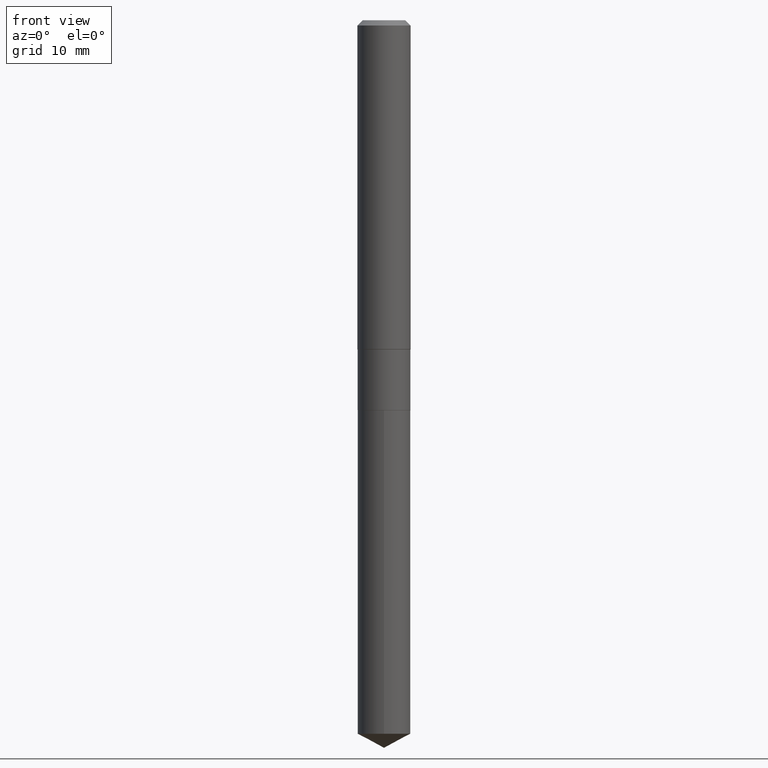
[diagram: clean part render]
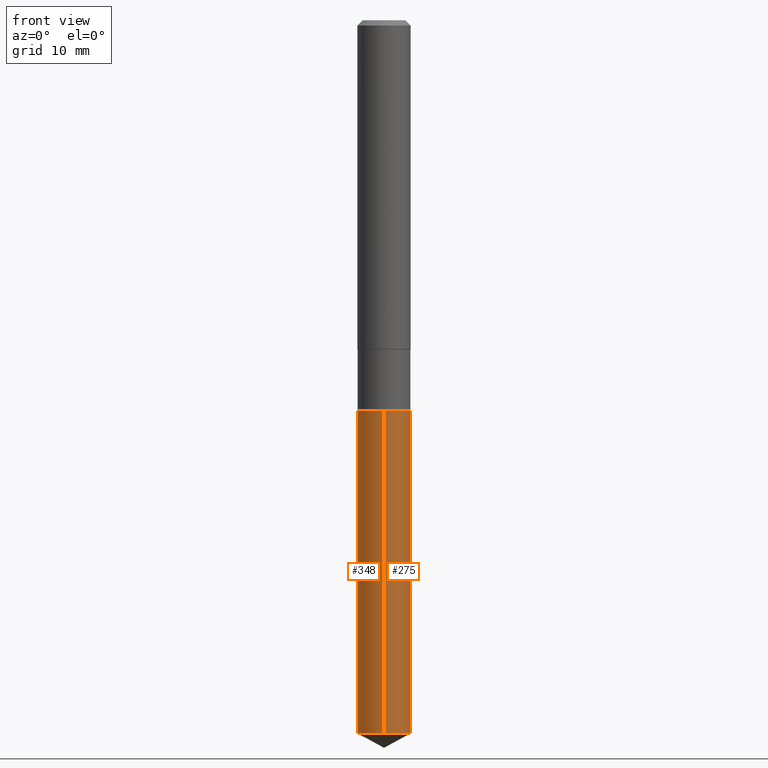
[diagram: same view with one multi-face feature highlighted, each face labeled with its STEP entity id]
A machine part, front view. The highlighted faces form ONE feature: a constant-radius fillet chain: 2 tangent blend faces with common blend radius 2.9769 mm. The faces share edges in the B-rep.
Their STEP definitions:
[1] entity #348 (Cylinder):
#18 = VERTEX_POINT ( 'NONE', #82 ) ;
#59 = AXIS2_PLACEMENT_3D ( 'NONE', #134, #360, #435 ) ;
#63 = DIRECTION ( 'NONE',  ( -6.982962677686265922E-15, -1.000000000000000000, 2.330928322239132474E-15 ) ) ;
#71 = EDGE_CURVE ( 'NONE', #95, #178, #196, .T. ) ;
#82 = CARTESIAN_POINT ( 'NONE',  ( 8.327560863109148150E-16, 0.1171999999999889519, -3.165683654609275699 ) ) ;
#95 = VERTEX_POINT ( 'NONE', #235 ) ;
#96 = CYLINDRICAL_SURFACE ( 'NONE', #198, 0.1171999999999999986 ) ;
#101 = CARTESIAN_POINT ( 'NONE',  ( 4.231639222222760531E-29, -6.041659308734178576E-15, -1.730399999999999938 ) ) ;
#103 = CIRCLE ( 'NONE', #59, 0.1171999999999999986 ) ;
#112 = ORIENTED_EDGE ( 'NONE', *, *, #298, .F. ) ;
#134 = CARTESIAN_POINT ( 'NONE',  ( 4.231639222222760531E-29, -6.041659308734178576E-15, -1.730399999999999938 ) ) ;
#143 = CARTESIAN_POINT ( 'NONE',  ( -8.184032258247879554E-16, -0.1172000000000060493, -1.730399999999999716 ) ) ;
#178 = VERTEX_POINT ( 'NONE', #143 ) ;
#196 = LINE ( 'NONE', #423, #338 ) ;
#198 = AXIS2_PLACEMENT_3D ( 'NONE', #101, #407, #63 ) ;
#204 = CIRCLE ( 'NONE', #304, 0.1171999999999999986 ) ;
#205 = ORIENTED_EDGE ( 'NONE', *, *, #490, .T. ) ;
#235 = CARTESIAN_POINT ( 'NONE',  ( -8.184032258247529497E-16, -0.1172000000000110592, -3.165683654609274367 ) ) ;
#286 = LINE ( 'NONE', #361, #457 ) ;
#291 = EDGE_LOOP ( 'NONE', ( #112, #205, #316, #467 ) ) ;
#298 = EDGE_CURVE ( 'NONE', #18, #448, #286, .T. ) ;
#304 = AXIS2_PLACEMENT_3D ( 'NONE', #442, #404, #363 ) ;
#316 = ORIENTED_EDGE ( 'NONE', *, *, #71, .T. ) ;
#338 = VECTOR ( 'NONE', #343, 39.37007874015748143 ) ;
#341 = EDGE_CURVE ( 'NONE', #448, #178, #103, .T. ) ;
#343 = DIRECTION ( 'NONE',  ( -2.445547445616440357E-29, 3.491368722701639163E-15, 1.000000000000000000 ) ) ;
#348 = ADVANCED_FACE ( 'NONE', ( #367 ), #96, .T. ) ;
#360 = DIRECTION ( 'NONE',  ( -2.445547445616440637E-29, 3.491368722701639557E-15, 1.000000000000000000 ) ) ;
#361 = CARTESIAN_POINT ( 'NONE',  ( 8.327560863108796121E-16, 0.1171999999999939479, -1.730400000000000160 ) ) ;
#363 = DIRECTION ( 'NONE',  ( -6.982962677686265922E-15, -1.000000000000000000, 4.661856644478264948E-15 ) ) ;
#367 = FACE_OUTER_BOUND ( 'NONE', #291, .T. ) ;
#404 = DIRECTION ( 'NONE',  ( -2.445547445616440637E-29, 3.491368722701639557E-15, 1.000000000000000000 ) ) ;
#407 = DIRECTION ( 'NONE',  ( -2.445547445616440637E-29, 3.491368722701639557E-15, 1.000000000000000000 ) ) ;
#423 = CARTESIAN_POINT ( 'NONE',  ( -8.184032258247879554E-16, -0.1172000000000060493, -1.730399999999999716 ) ) ;
#435 = DIRECTION ( 'NONE',  ( -6.982962677686265922E-15, -1.000000000000000000, 2.330928322239132474E-15 ) ) ;
#436 = DIRECTION ( 'NONE',  ( -2.445547445616440357E-29, 3.491368722701639163E-15, 1.000000000000000000 ) ) ;
#438 = CARTESIAN_POINT ( 'NONE',  ( 8.327560863109149136E-16, 0.1171999999999939340, -1.730400000000000160 ) ) ;
#442 = CARTESIAN_POINT ( 'NONE',  ( 7.741693497487502806E-29, -1.105276376864190522E-14, -3.165683654609275255 ) ) ;
#448 = VERTEX_POINT ( 'NONE', #438 ) ;
#457 = VECTOR ( 'NONE', #436, 39.37007874015748143 ) ;
#467 = ORIENTED_EDGE ( 'NONE', *, *, #341, .F. ) ;
#490 = EDGE_CURVE ( 'NONE', #18, #95, #204, .T. ) ;
[2] entity #275 (Cylinder):
#10 = AXIS2_PLACEMENT_3D ( 'NONE', #250, #20, #180 ) ;
#18 = VERTEX_POINT ( 'NONE', #82 ) ;
#20 = DIRECTION ( 'NONE',  ( -2.445547445616440637E-29, 3.491368722701639557E-15, 1.000000000000000000 ) ) ;
#58 = AXIS2_PLACEMENT_3D ( 'NONE', #281, #427, #315 ) ;
#62 = CARTESIAN_POINT ( 'NONE',  ( 7.741693497487502806E-29, -1.105276376864190522E-14, -3.165683654609275255 ) ) ;
#67 = CIRCLE ( 'NONE', #10, 0.1171999999999999986 ) ;
#71 = EDGE_CURVE ( 'NONE', #95, #178, #196, .T. ) ;
#82 = CARTESIAN_POINT ( 'NONE',  ( 8.327560863109148150E-16, 0.1171999999999889519, -3.165683654609275699 ) ) ;
#90 = DIRECTION ( 'NONE',  ( -6.982962677686265922E-15, -1.000000000000000000, 4.661856644478264948E-15 ) ) ;
#95 = VERTEX_POINT ( 'NONE', #235 ) ;
#104 = ORIENTED_EDGE ( 'NONE', *, *, #216, .T. ) ;
#116 = ORIENTED_EDGE ( 'NONE', *, *, #298, .T. ) ;
#143 = CARTESIAN_POINT ( 'NONE',  ( -8.184032258247879554E-16, -0.1172000000000060493, -1.730399999999999716 ) ) ;
#178 = VERTEX_POINT ( 'NONE', #143 ) ;
#180 = DIRECTION ( 'NONE',  ( -6.982962677686265922E-15, -1.000000000000000000, 2.330928322239132474E-15 ) ) ;
#196 = LINE ( 'NONE', #423, #338 ) ;
#206 = FACE_OUTER_BOUND ( 'NONE', #488, .T. ) ;
#216 = EDGE_CURVE ( 'NONE', #95, #18, #245, .T. ) ;
#235 = CARTESIAN_POINT ( 'NONE',  ( -8.184032258247529497E-16, -0.1172000000000110592, -3.165683654609274367 ) ) ;
#245 = CIRCLE ( 'NONE', #417, 0.1171999999999999986 ) ;
#250 = CARTESIAN_POINT ( 'NONE',  ( 4.231639222222760531E-29, -6.041659308734178576E-15, -1.730399999999999938 ) ) ;
#275 = ADVANCED_FACE ( 'NONE', ( #206 ), #477, .T. ) ;
#281 = CARTESIAN_POINT ( 'NONE',  ( 4.231639222222760531E-29, -6.041659308734178576E-15, -1.730399999999999938 ) ) ;
#286 = LINE ( 'NONE', #361, #457 ) ;
#298 = EDGE_CURVE ( 'NONE', #18, #448, #286, .T. ) ;
#315 = DIRECTION ( 'NONE',  ( -6.982962677686265922E-15, -1.000000000000000000, 2.330928322239132474E-15 ) ) ;
#338 = VECTOR ( 'NONE', #343, 39.37007874015748143 ) ;
#343 = DIRECTION ( 'NONE',  ( -2.445547445616440357E-29, 3.491368722701639163E-15, 1.000000000000000000 ) ) ;
#361 = CARTESIAN_POINT ( 'NONE',  ( 8.327560863108796121E-16, 0.1171999999999939479, -1.730400000000000160 ) ) ;
#364 = EDGE_CURVE ( 'NONE', #178, #448, #67, .T. ) ;
#417 = AXIS2_PLACEMENT_3D ( 'NONE', #62, #431, #90 ) ;
#423 = CARTESIAN_POINT ( 'NONE',  ( -8.184032258247879554E-16, -0.1172000000000060493, -1.730399999999999716 ) ) ;
#427 = DIRECTION ( 'NONE',  ( -2.445547445616440637E-29, 3.491368722701639557E-15, 1.000000000000000000 ) ) ;
#431 = DIRECTION ( 'NONE',  ( -2.445547445616440637E-29, 3.491368722701639557E-15, 1.000000000000000000 ) ) ;
#436 = DIRECTION ( 'NONE',  ( -2.445547445616440357E-29, 3.491368722701639163E-15, 1.000000000000000000 ) ) ;
#438 = CARTESIAN_POINT ( 'NONE',  ( 8.327560863109149136E-16, 0.1171999999999939340, -1.730400000000000160 ) ) ;
#441 = ORIENTED_EDGE ( 'NONE', *, *, #364, .F. ) ;
#448 = VERTEX_POINT ( 'NONE', #438 ) ;
#457 = VECTOR ( 'NONE', #436, 39.37007874015748143 ) ;
#469 = ORIENTED_EDGE ( 'NONE', *, *, #71, .F. ) ;
#477 = CYLINDRICAL_SURFACE ( 'NONE', #58, 0.1171999999999999986 ) ;
#488 = EDGE_LOOP ( 'NONE', ( #104, #116, #441, #469 ) ) ;